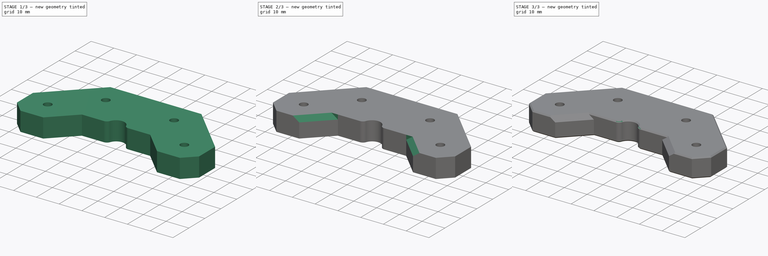
[diagram: build sequence overview — one tinted view per stage of 3, left to right]
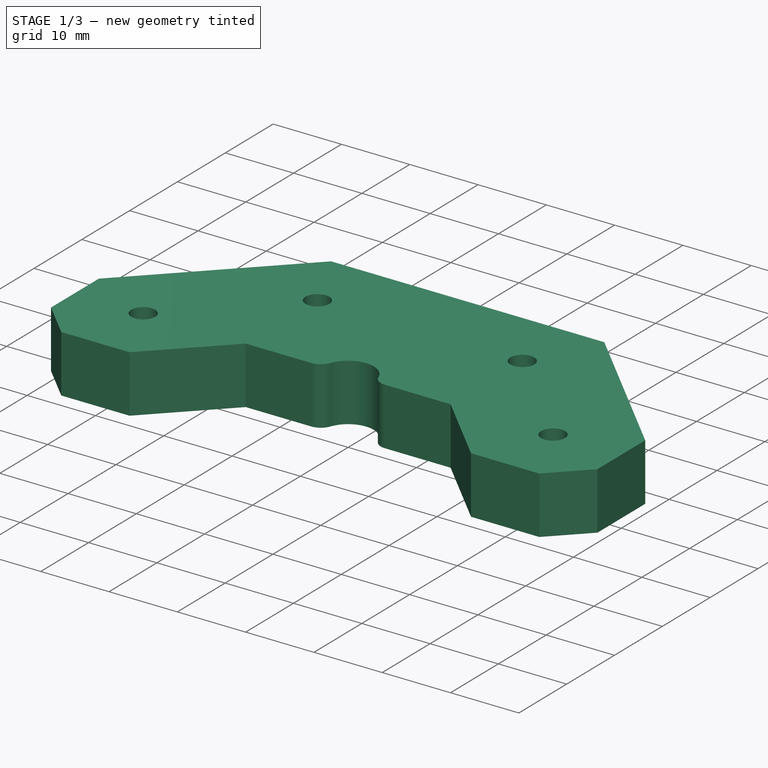
[diagram: stage 1 of 3 — iso view after this stage's code; geometry added in this stage tinted green]
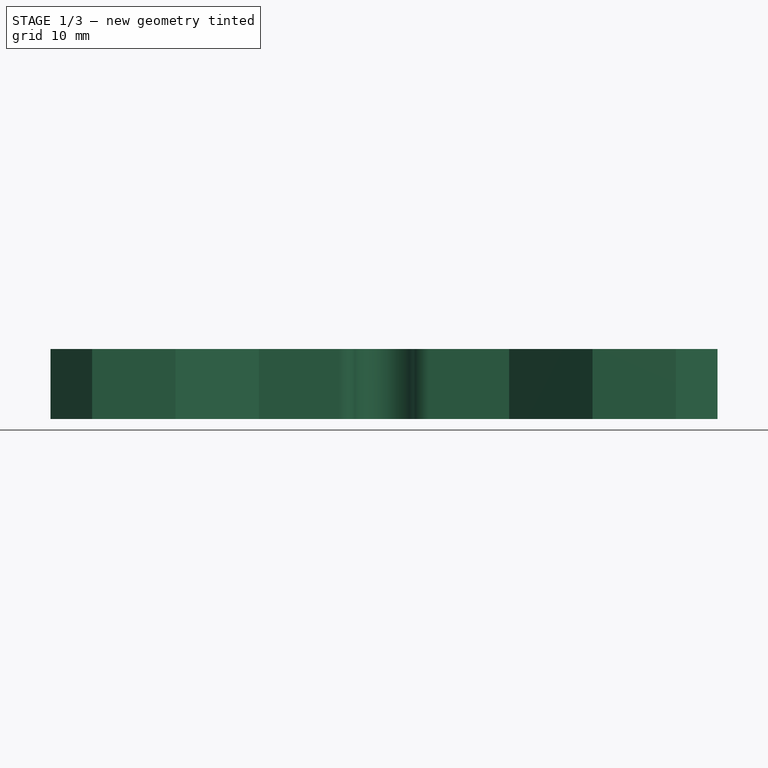
[diagram: stage 1 of 3 — front view after this stage's code; geometry added in this stage tinted green]
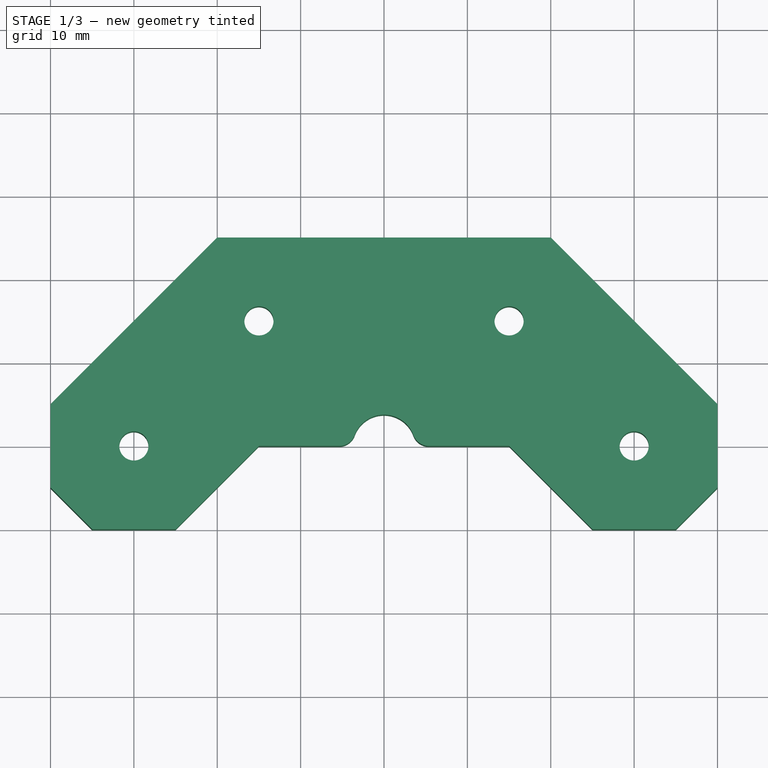
[diagram: stage 1 of 3 — top view after this stage's code; geometry added in this stage tinted green]
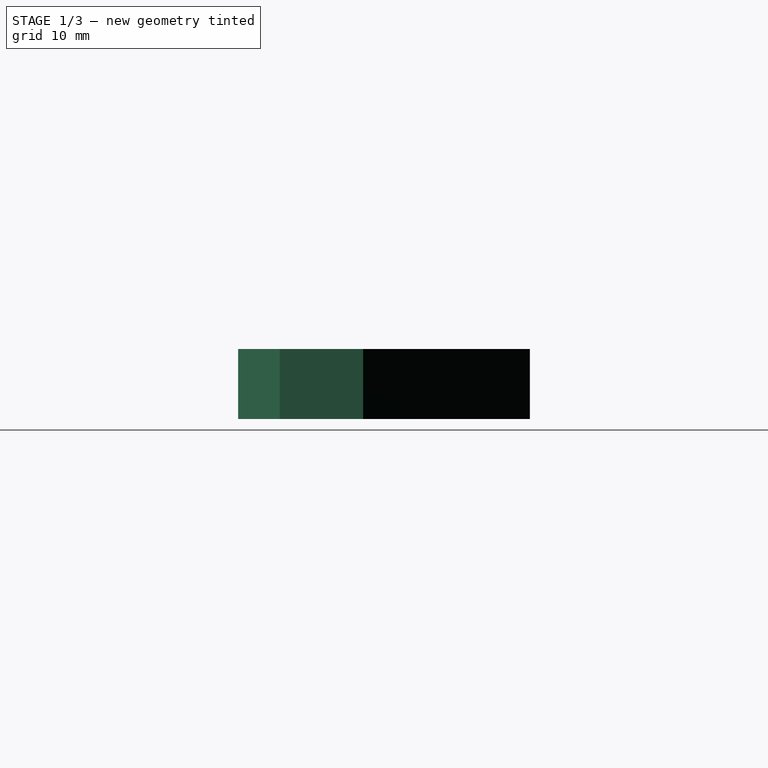
[diagram: stage 1 of 3 — right view after this stage's code; geometry added in this stage tinted green]
FCSTD DOCUMENT  (FreeCAD 0.19R24291 (Git))
Label: FDM-0055_datum-board-mount
License: All rights reserved
LicenseURL: http://en.wikipedia.org/wiki/All_rights_reserved
objects: PartDesign::Chamfer×2, PartDesign::Plane×2, Sketcher::SketchObject×1, PartDesign::Pad×1, PartDesign::Fillet×1, Part::Part2DObjectPython×1, PartDesign::Pocket×1, PartDesign::Body×1
note: 15 computed .brp shape members not serialized (recipe doc carries the construction recipe); baked Part::Feature solids carry a one-line shape summary decoded from their .brp

FEATURE [Sketcher::SketchObject] Sketch
  FullyConstrained = true
  MapMode = 5
  Support = -> [XY_Plane]
  sketch-geometry (18):
    g0: Circle CenterX=0 CenterY=0 CenterZ=0 NormalX=0 NormalY=0 NormalZ=1 AngleXU=0 Radius=1.75
    g1: Circle CenterX=15 CenterY=15 CenterZ=0 NormalX=0 NormalY=0 NormalZ=1 AngleXU=0 Radius=1.75
    g2: Circle CenterX=45 CenterY=15 CenterZ=0 NormalX=0 NormalY=0 NormalZ=1 AngleXU=0 Radius=1.75
    g3: Circle CenterX=60 CenterY=0 CenterZ=0 NormalX=0 NormalY=0 NormalZ=1 AngleXU=0 Radius=1.75
    g4: LineSegment StartX=-10 StartY=-5 StartZ=0 EndX=-5 EndY=-10 EndZ=0
    g5: LineSegment StartX=-5 StartY=-10 StartZ=0 EndX=5 EndY=-10 EndZ=0
    g6: LineSegment StartX=5 StartY=-10 StartZ=0 EndX=15 EndY=0 EndZ=0
    g7: LineSegment StartX=45 StartY=0 StartZ=0 EndX=55 EndY=-10 EndZ=0
    g8: LineSegment StartX=55 StartY=-10 StartZ=0 EndX=65 EndY=-10 EndZ=0
    g9: LineSegment StartX=65 StartY=-10 StartZ=0 EndX=70 EndY=-5 EndZ=0
    g10: LineSegment StartX=70 StartY=-5 StartZ=0 EndX=70 EndY=5 EndZ=0
    g11: LineSegment StartX=70 StartY=5 StartZ=0 EndX=50 EndY=25 EndZ=0
    g12: LineSegment StartX=50 StartY=25 StartZ=0 EndX=10 EndY=25 EndZ=0
    g13: LineSegment StartX=10 StartY=25 StartZ=0 EndX=-10 EndY=5 EndZ=0
    g14: LineSegment StartX=-10 StartY=5 StartZ=0 EndX=-10 EndY=-5 EndZ=0
    g15: ArcOfCircle CenterX=30 CenterY=0 CenterZ=0 NormalX=0 NormalY=0 NormalZ=1 AngleXU=0 Radius=3.75 StartAngle=0 EndAngle=3.14159
    g16: LineSegment StartX=15 StartY=0 StartZ=0 EndX=26.25 EndY=0 EndZ=0
    g17: LineSegment StartX=33.75 StartY=0 StartZ=0 EndX=45 EndY=0 EndZ=0
  constraints (51):
    c: Coincident(g0,g-1)
    c: PointOnObject(g3,g-1)
    c: DistanceX(g0,g1) = 15
    c: DistanceX(g1,g2) = 30
    c: DistanceY(g0,g1) = 15
    c: DistanceY(g0,g2) = 15
    c: DistanceX(g0,g3) = 60
    c: Diameter(g0) = 3.5
    c: Equal(g0,g1)
    c: Equal(g0,g2)
    c: Equal(g0,g3)
    c: Coincident(g4,g5)
    c: Coincident(g5,g6)
    c: PointOnObject(g6,g-1)
    c: PointOnObject(g7,g-1)
    c: Coincident(g7,g8)
    c: Horizontal(g8)
    c: Coincident(g8,g9)
    c: Coincident(g9,g10)
    c: Coincident(g10,g11)
    c: Coincident(g11,g12)
    c: Horizontal(g12)
    c: Coincident(g12,g13)
    c: Coincident(g13,g14)
    c: Coincident(g14,g4)
    c: DistanceX(g0,g6) = 15
    c: PointOnObject(g15,g-1)
    c: PointOnObject(g15,g-1)
    c: PointOnObject(g15,g-1)
    c: Coincident(g16,g6)
    c: Coincident(g16,g15)
    c: Coincident(g17,g15)
    c: Coincident(g17,g7)
    c: Diameter(g15) = 7.5
    c: DistanceY(g0,g12) = 25
    c: DistanceY(g4,g0) = 10
    c: DistanceX(g5,g5) = 10
    c: Symmetric(g4,g5,g-2)
    c: DistanceX(g4,g0) = 10
    c: Symmetric(g13,g4,g-1)
    c: Symmetric(g10,g9,g-1)
    c: DistanceY(g14,g14) = 10
    c: DistanceY(g10,g10) = 10
    c: Angle(g14,g13) = 2.35619
    c: Angle(g11,g10) = 2.35619
    c: DistanceX(g3,g9) = 10
    c: DistanceY(g8,g3) = 10
    c: DistanceX(g0,g15) = 30
    c: DistanceX(g8,g8) = 10
    c: DistanceX(g7,g3) = 5
    c: DistanceX(g7,g3) = 15
FEATURE [PartDesign::Pad] Pad
  Direction = (1,1,1)
  Length = 8.4
  Length2 = 100
  Profile = -> Sketch
  Type = 0
FEATURE [PartDesign::Fillet] Fillet
  Base = -> Pad [Edge1,Edge38]
  BaseFeature = -> Pad
  Radius = 2
  SupportTransform = false
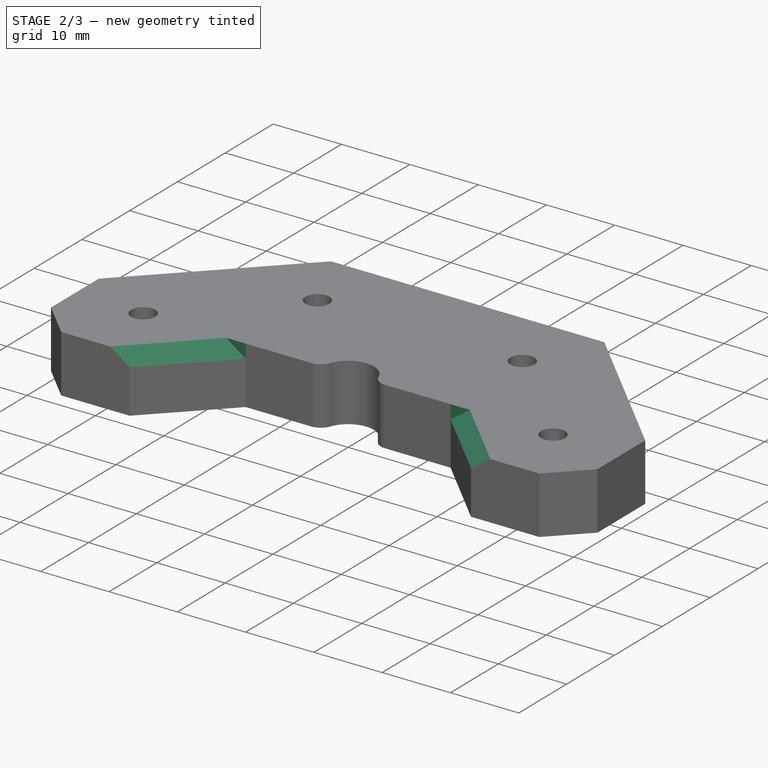
[diagram: stage 2 of 3 — iso view after this stage's code; geometry added in this stage tinted green]
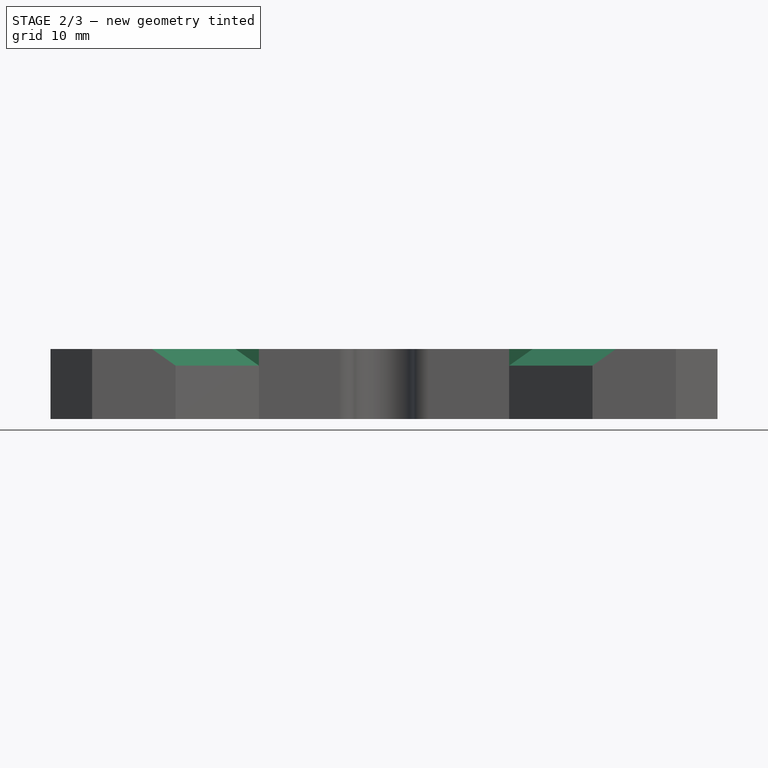
[diagram: stage 2 of 3 — front view after this stage's code; geometry added in this stage tinted green]
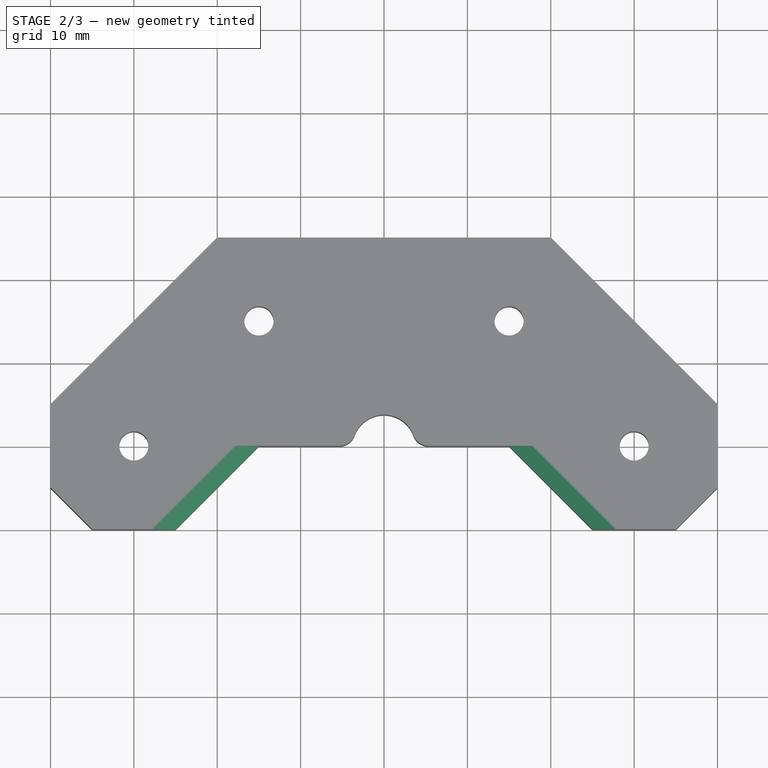
[diagram: stage 2 of 3 — top view after this stage's code; geometry added in this stage tinted green]
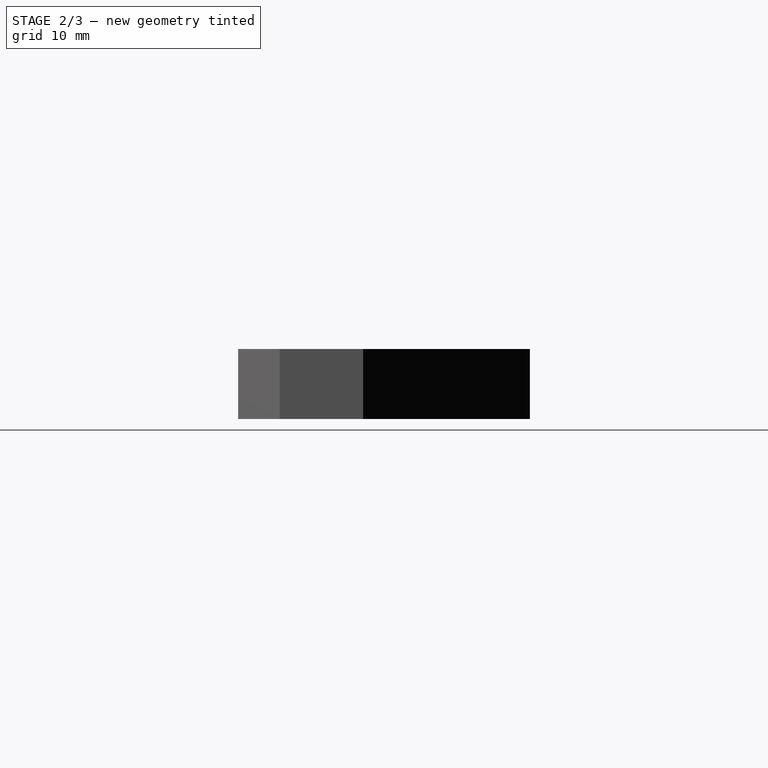
[diagram: stage 2 of 3 — right view after this stage's code; geometry added in this stage tinted green]
FEATURE [PartDesign::Chamfer] Chamfer001
  Angle = 45
  Base = -> Fillet [Edge34,Edge27]
  BaseFeature = -> Fillet
  ChamferType = 0
  FlipDirection = false
  Size = 2
  Size2 = 1
  SupportTransform = false
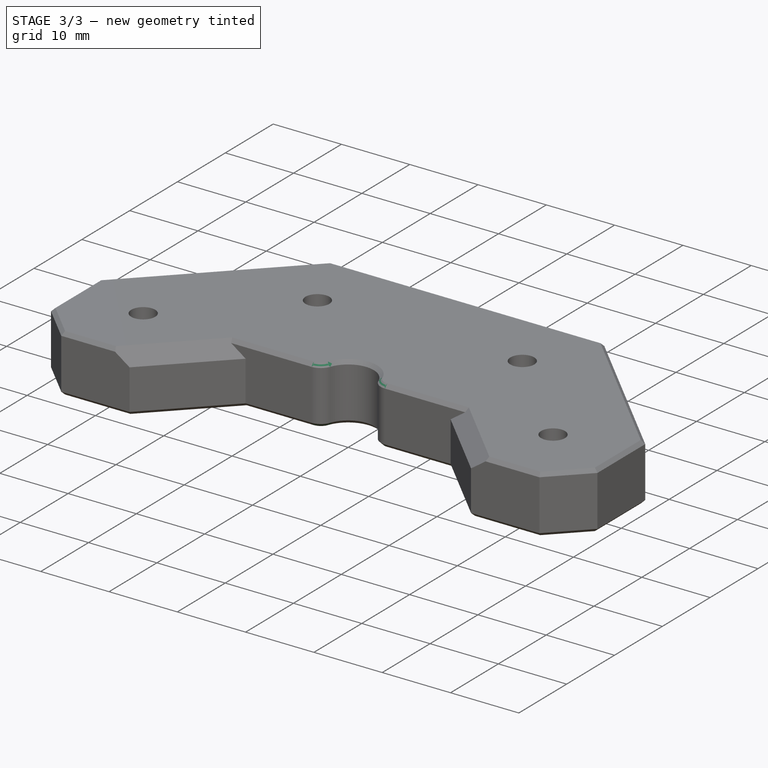
[diagram: stage 3 of 3 — iso view after this stage's code; geometry added in this stage tinted green]
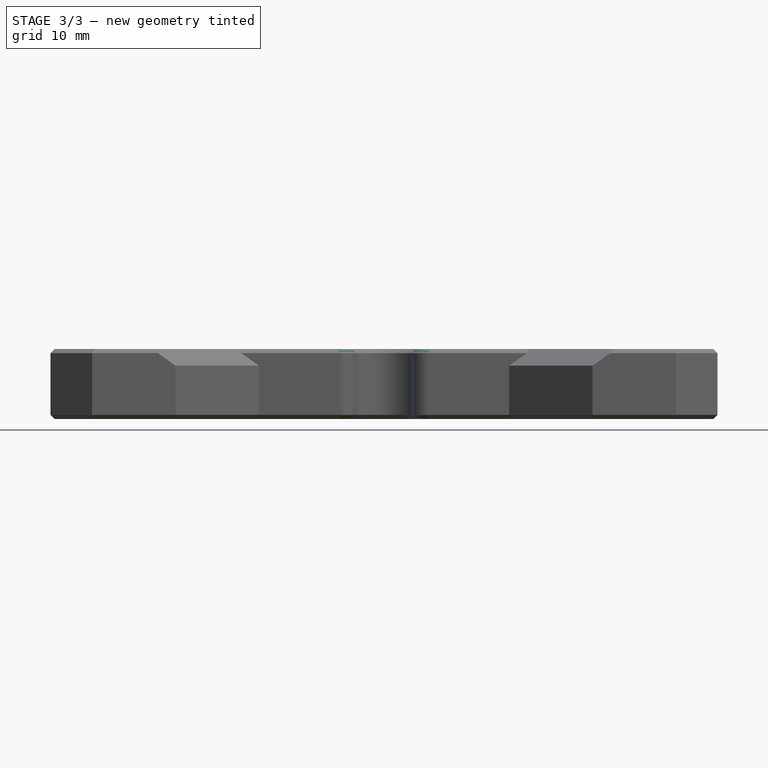
[diagram: stage 3 of 3 — front view after this stage's code; geometry added in this stage tinted green]
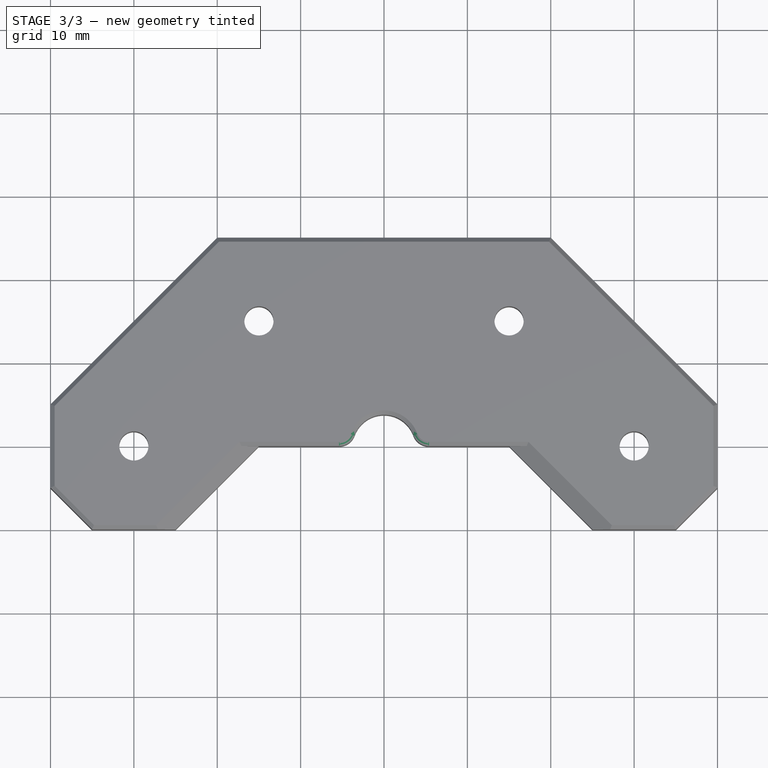
[diagram: stage 3 of 3 — top view after this stage's code; geometry added in this stage tinted green]
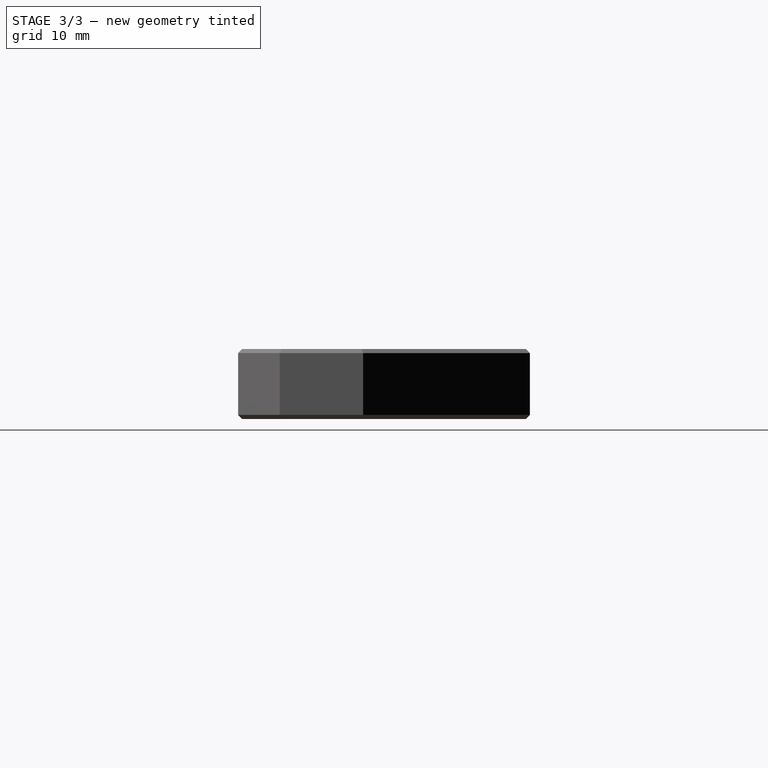
[diagram: stage 3 of 3 — right view after this stage's code; geometry added in this stage tinted green]
FEATURE [PartDesign::Chamfer] Chamfer
  Angle = 45
  Base = -> Chamfer001 [Face4,Edge40,Edge43,Edge30,Edge31,Edge32,Edge41,Edge39,Edge37,Edge35,Edge33]
  BaseFeature = -> Chamfer001
  ChamferType = 0
  FlipDirection = false
  Size = 0.5
  Size2 = 1
  SupportTransform = false
FEATURE [PartDesign::Plane] DatumPlane
  Length = 108.784
  MapMode = 5
  Placement = pos=(0,25,0) rot=(0,0.707107,0.707107;3.14159rad)
  ResizeMode = 0
  Support = -> [Chamfer]
  Width = 63.784
FEATURE [Part::Part2DObjectPython] ShapeString  label="PN"  # Draft 2D object (typed FeaturePython)
  AttachmentOffset = pos=(-49,2,0) rot=(0,0,1;0rad)
  FontFile = ../../lib/fonts/RobotoMono-VariableFont_weight.ttf
  MapMode = 5
  Placement = pos=(49,25,2) rot=(0,0.707107,0.707107;3.14159rad)
  Size = 5
  String = FDM-0055-00
  Support = -> [DatumPlane]
  Tracking = 0
FEATURE [PartDesign::Pocket] Pocket
  BaseFeature = -> Chamfer
  Length = 0.5
  Length2 = 100
  Profile = -> ShapeString
  Type = 0
FEATURE [PartDesign::Plane] DatumPlane002  label="PrintPlane"
  Length = 108.784
  MapMode = 5
  Placement = pos=(0,0,8.4) rot=(0,0,1;0rad)
  ResizeMode = 0
  Support = -> [Pocket]
  Width = 63.784
FEATURE [PartDesign::Body] Body
  Group = -> [Sketch,Pad,Fillet,Chamfer001,Chamfer,DatumPlane,ShapeString,DatumPlane002,Pocket]
  Origin = -> Origin
  Tip = -> Chamfer
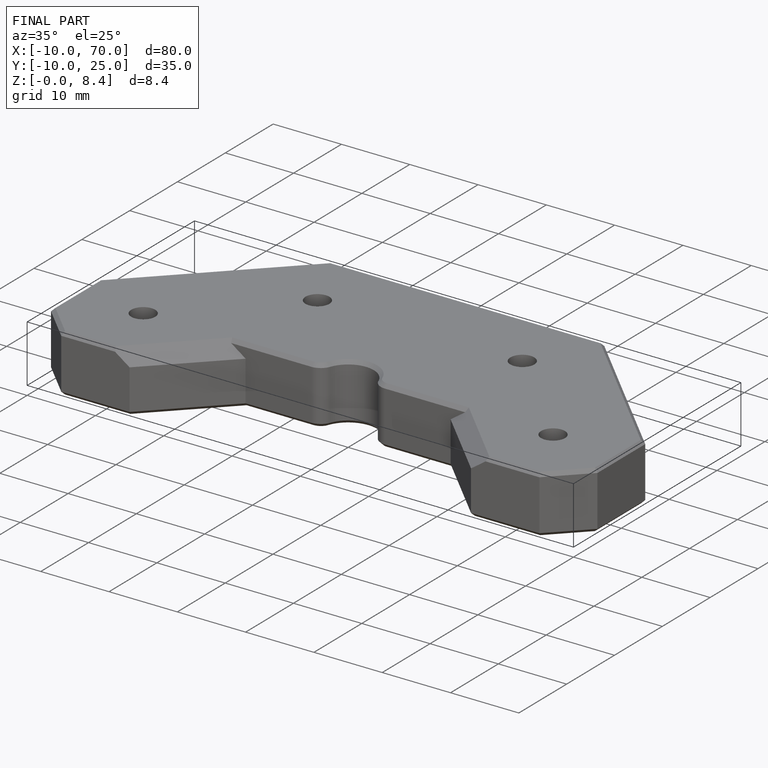
[diagram: finished part — iso view with bounding-box wireframe]
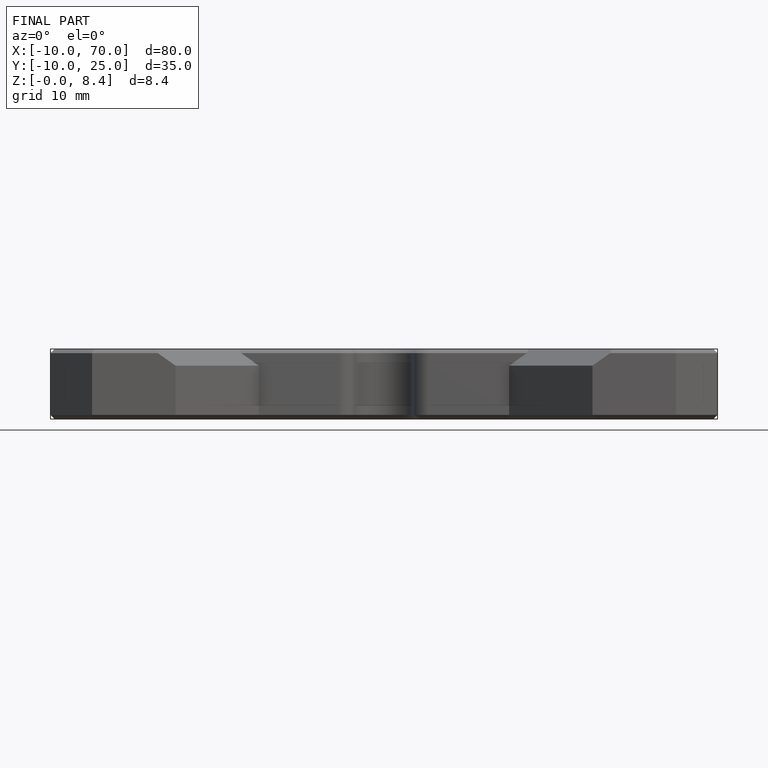
[diagram: finished part — front view with bounding-box wireframe]
